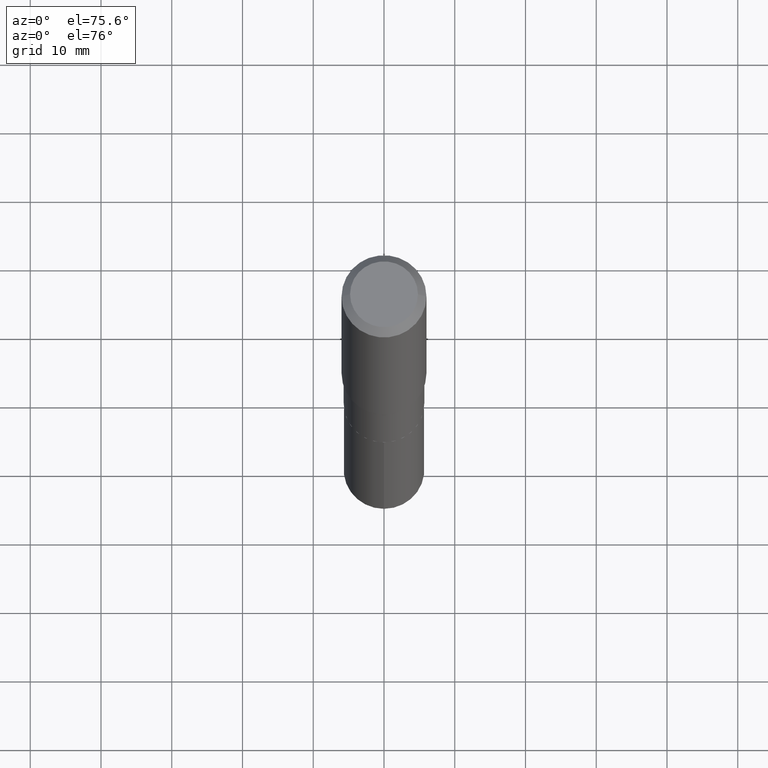
[diagram: clean part render]
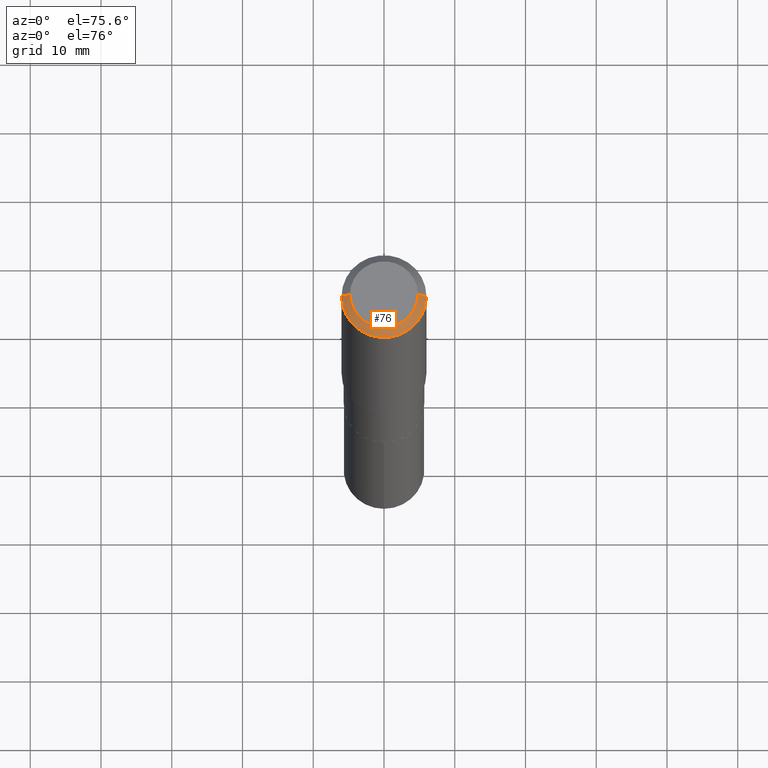
[diagram: same view with one face highlighted and labeled with its STEP entity id]
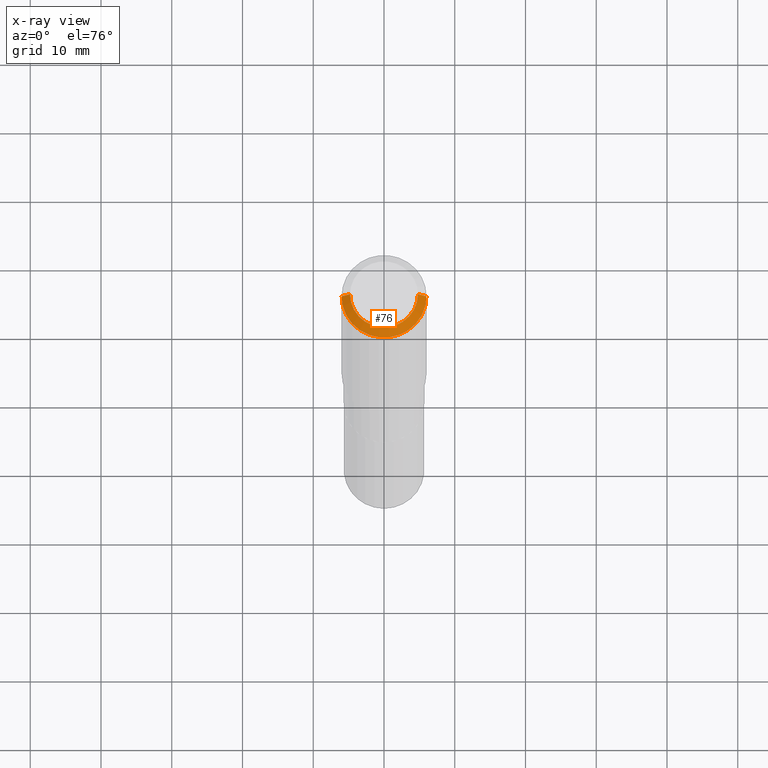
[diagram: x-ray of the same camera — body ghosted, the highlighted face saturated]
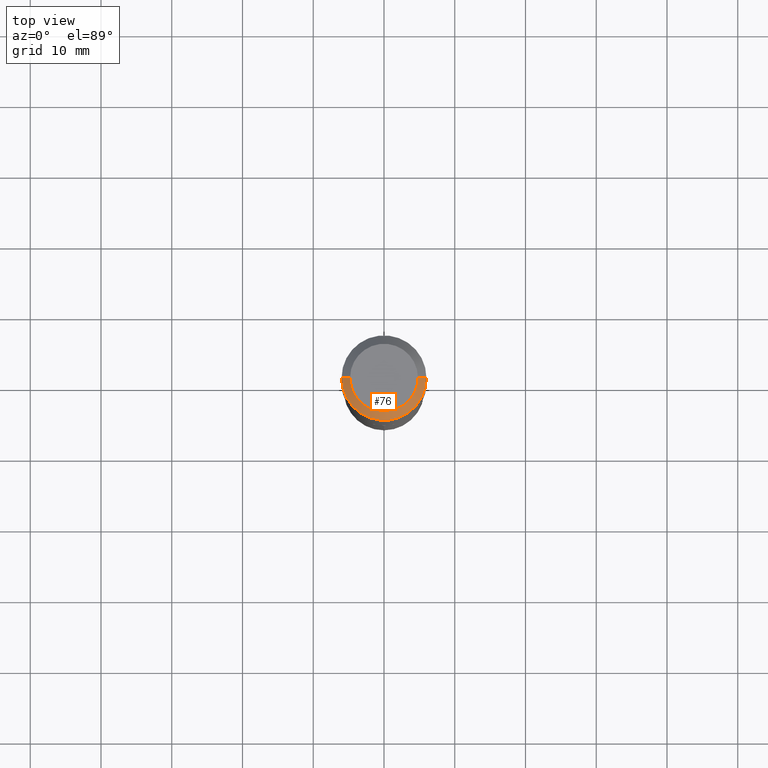
[diagram: same view with one face highlighted and labeled with its STEP entity id]
A machine part, auxiliary view. The second image highlights one B-rep face of the part: STEP entity #76.
The next image is the same camera in x-ray: the body ghosted, the highlighted face saturated — about 0% of this face is hidden behind the body in this view.
A second angle (top view) of the same face is appended — the face is thin or edge-on in the first view.
In plain terms, the highlighted conical surface has half-angle 45 deg.
Its self-contained STEP definition (entity closure, byte-faithful):
#7 = AXIS2_PLACEMENT_3D ( 'NONE', #69, #61, #33 ) ;
#9 = AXIS2_PLACEMENT_3D ( 'NONE', #124, #117, #159 ) ;
#20 = ORIENTED_EDGE ( 'NONE', *, *, #201, .F. ) ;
#33 = DIRECTION ( 'NONE',  ( 1.000000000000000000, -6.982962677686266711E-15, 0.000000000000000000 ) ) ;
#55 = CARTESIAN_POINT ( 'NONE',  ( -0.2361999999999999933, -1.496222721037607866E-15, -0.04724000000000028177 ) ) ;
#61 = DIRECTION ( 'NONE',  ( -2.445468806185136597E-29, 3.491481338843145583E-15, 1.000000000000000000 ) ) ;
#69 = CARTESIAN_POINT ( 'NONE',  ( 1.155239464041865506E-30, -1.649375784469511859E-16, -0.04724000000000028177 ) ) ;
#76 = ADVANCED_FACE ( 'NONE', ( #79 ), #192, .T. ) ;
#79 = FACE_OUTER_BOUND ( 'NONE', #288, .T. ) ;
#85 = CARTESIAN_POINT ( 'NONE',  ( 0.2361999999999999933, -1.814313362916447440E-15, -0.04724000000000028177 ) ) ;
#102 = LINE ( 'NONE', #473, #390 ) ;
#117 = DIRECTION ( 'NONE',  ( -2.445468806185136597E-29, 3.491481338843145583E-15, 1.000000000000000000 ) ) ;
#124 = CARTESIAN_POINT ( 'NONE',  ( -9.427742298522546243E-47, 1.346031739168365344E-32, 3.855188123715862256E-18 ) ) ;
#138 = DIRECTION ( 'NONE',  ( 0.7071067811865453523, -7.319954787623248157E-15, -0.7071067811865496822 ) ) ;
#159 = DIRECTION ( 'NONE',  ( 1.000000000000000000, -6.982962677686266711E-15, 4.876185090822587894E-29 ) ) ;
#175 = DIRECTION ( 'NONE',  ( -0.7071067811865453523, 2.468850131082234184E-15, -0.7071067811865496822 ) ) ;
#177 = VERTEX_POINT ( 'NONE', #55 ) ;
#192 = CONICAL_SURFACE ( 'NONE', #385, 0.2361999999999999933, 0.7853981633974452814 ) ;
#201 = EDGE_CURVE ( 'NONE', #437, #239, #416, .T. ) ;
#205 = VECTOR ( 'NONE', #175, 39.37007874015748143 ) ;
#225 = CARTESIAN_POINT ( 'NONE',  ( 1.155239464041865506E-30, -1.649375784469511859E-16, -0.04724000000000028177 ) ) ;
#239 = VERTEX_POINT ( 'NONE', #311 ) ;
#245 = VERTEX_POINT ( 'NONE', #85 ) ;
#255 = CARTESIAN_POINT ( 'NONE',  ( -0.1889600000000000168, 1.401969416799070942E-15, 3.855188123706346622E-18 ) ) ;
#276 = CIRCLE ( 'NONE', #7, 0.2361999999999999933 ) ;
#288 = EDGE_LOOP ( 'NONE', ( #431, #20, #354, #363 ) ) ;
#303 = EDGE_CURVE ( 'NONE', #177, #245, #276, .T. ) ;
#311 = CARTESIAN_POINT ( 'NONE',  ( 0.1889600000000000168, -1.540873453589747738E-15, 3.855188123725863225E-18 ) ) ;
#329 = LINE ( 'NONE', #369, #205 ) ;
#331 = EDGE_CURVE ( 'NONE', #437, #177, #329, .T. ) ;
#354 = ORIENTED_EDGE ( 'NONE', *, *, #331, .T. ) ;
#363 = ORIENTED_EDGE ( 'NONE', *, *, #303, .T. ) ;
#369 = CARTESIAN_POINT ( 'NONE',  ( -0.2361999999999999933, 1.484438206022545019E-15, -0.04724000000000028177 ) ) ;
#373 = DIRECTION ( 'NONE',  ( -1.000000000000000000, 6.982962677686266711E-15, 0.000000000000000000 ) ) ;
#379 = EDGE_CURVE ( 'NONE', #239, #245, #102, .T. ) ;
#383 = DIRECTION ( 'NONE',  ( 2.445468806185136597E-29, -3.491481338843145583E-15, -1.000000000000000000 ) ) ;
#385 = AXIS2_PLACEMENT_3D ( 'NONE', #225, #383, #373 ) ;
#390 = VECTOR ( 'NONE', #138, 39.37007874015748143 ) ;
#416 = CIRCLE ( 'NONE', #9, 0.1889600000000000168 ) ;
#431 = ORIENTED_EDGE ( 'NONE', *, *, #379, .F. ) ;
#437 = VERTEX_POINT ( 'NONE', #255 ) ;
#473 = CARTESIAN_POINT ( 'NONE',  ( 0.2361999999999999933, -1.785387205520586782E-15, -0.04724000000000028177 ) ) ;